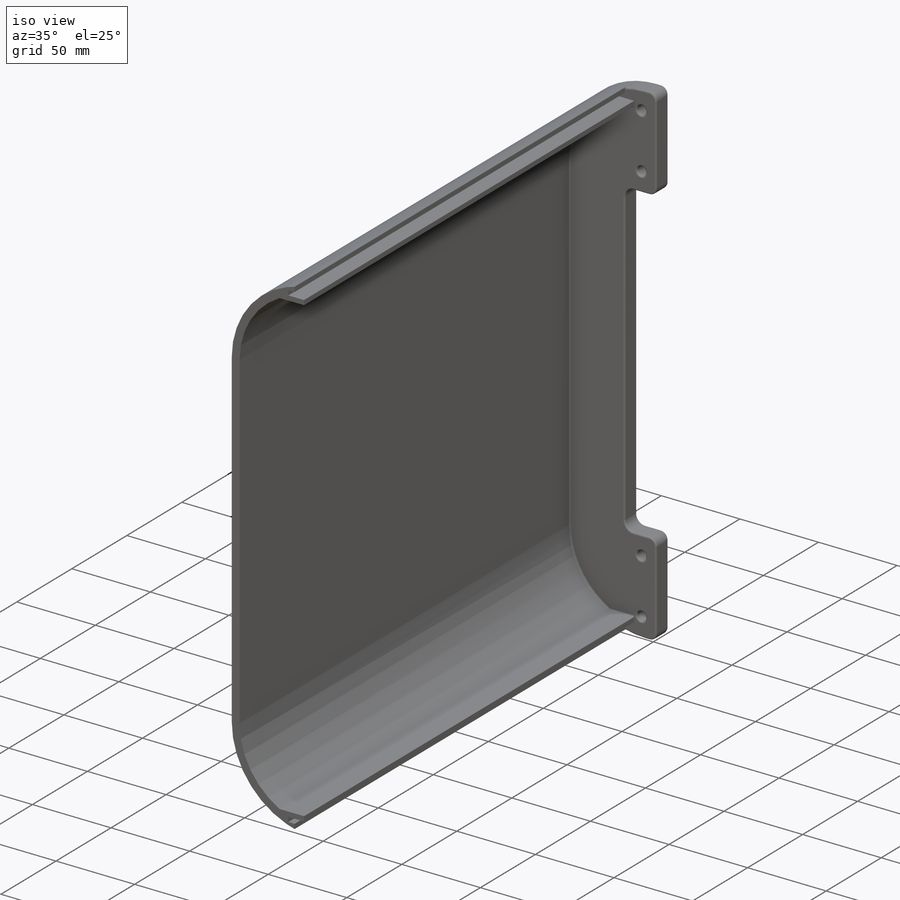
[diagram: iso view]
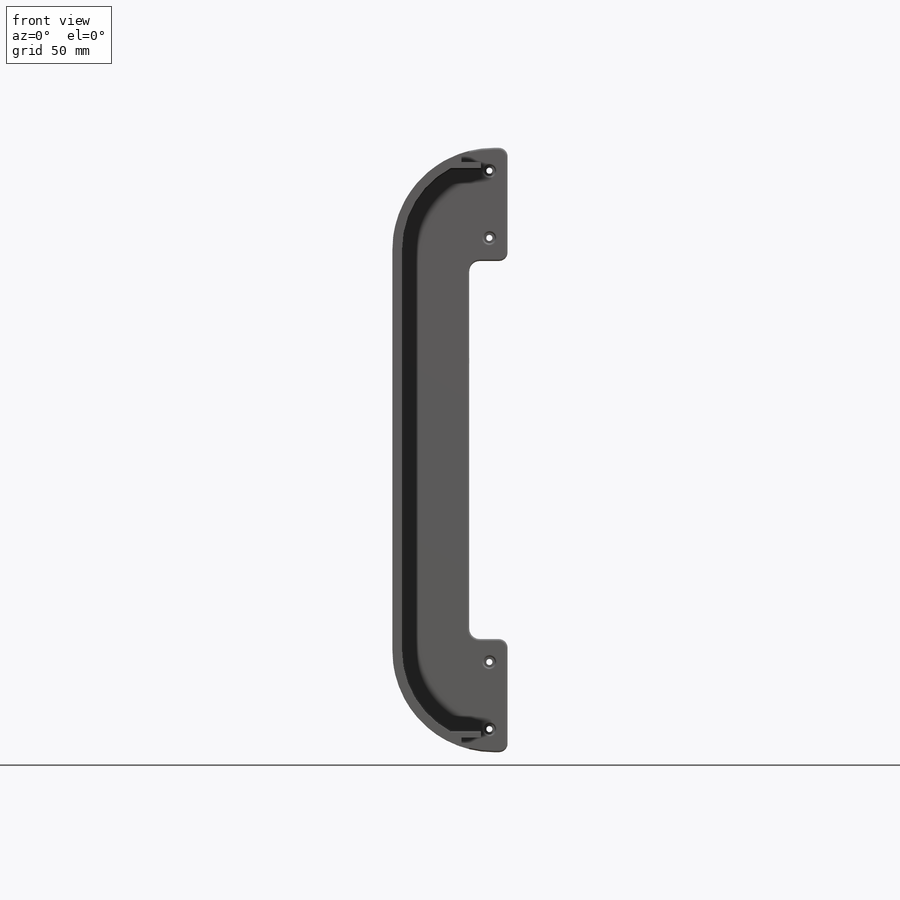
[diagram: front view]
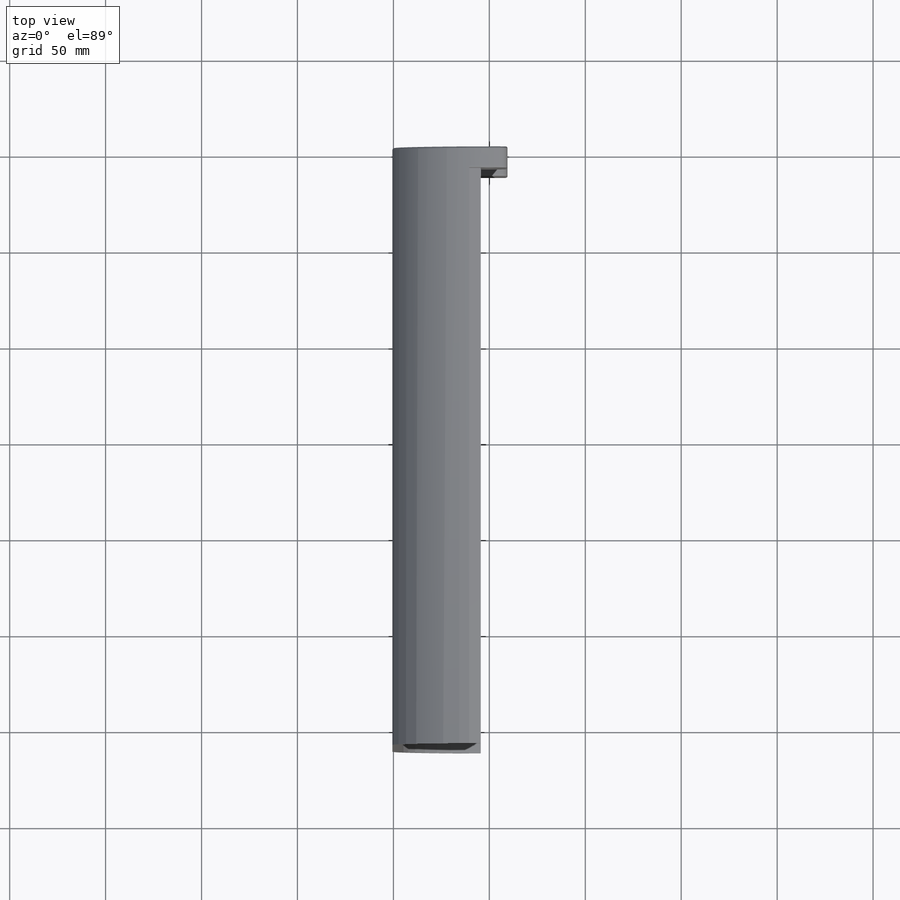
[diagram: top view]
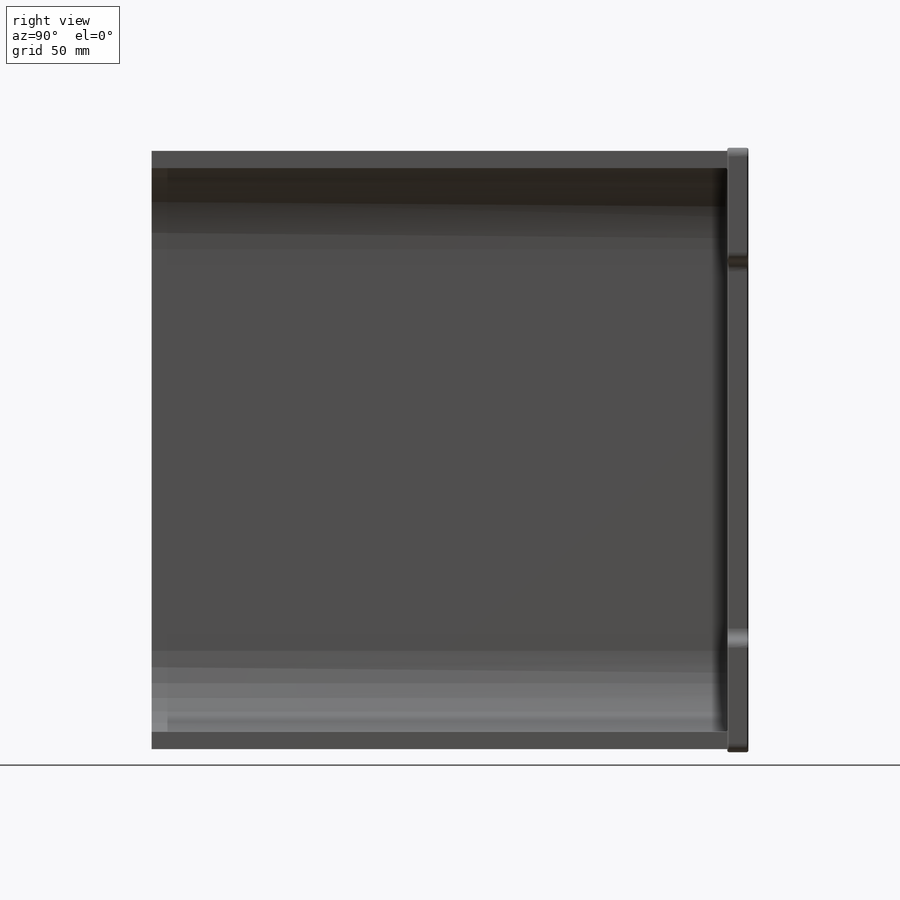
[diagram: right view]
SOLIDWORKS PART (.sldprt)
format: sldprt  version: not decoded by parser v0  size: 751,104 bytes
history: native  units: mm
features: sketch x4, extrude x2, delete_body x2, material x1, cut_extrude x1, fillet x1, mirror x1 (+13 scaffold rows collapsed)
feature tree (25):
  scaffold x13  (default folders/planes/origin — collapsed)
  material  "Material <not specified>"
  sketch  "Sketch1"
  sketch  "Sketch2"  dims[D4=3.2mm D2=209.2mm D3=40.0mm D5=35.0mm D1=0.5mm]
  extrude  "Boss-Extrude1"  [1 undecoded]
  sketch  "Sketch3"  dims[D1=5.75mm]
  cut_extrude  "Cut-Extrude1"  Depth=2mm
  sketch  "Sketch4"  dims[c1.D2=0.5mm c1.D4=3.0mm c1.D5=3.0mm c1.D6=4.0mm c1.D7=10.0mm c1.D1=5.0mm c1.D3=5.0mm c2.D1=5.0mm]
  extrude  "Boss-Extrude2"  Depth=300mm
  fillet  "Fillet1"  Radius=1mm
  mirror  "Mirror1"
  delete_body  "Body-Delete1"
  delete_body  "Body-Delete2"
decode coverage: 6 of 11 modeling features carry decoded parameters
note: 1 parameter value undecoded
note: suppression state not decoded; provenance and decode notes live in map.json
